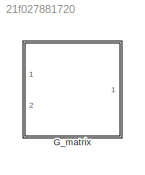
MODEL slx_21f027881720
KIND model
CONFIG AbsTol = auto
CONFIG EnableMultiTasking = off
CONFIG FixedStep = auto
CONFIG MaxStep = auto
CONFIG MinStep = auto
CONFIG RelTol = 1e-3
CONFIG SampleTimeConstraint = Unconstrained
CONFIG Solver = VariableStepAuto
CONFIG SolverName = VariableStepAuto
CONFIG StartTime = 0.0
CONFIG StopTime = 10.0
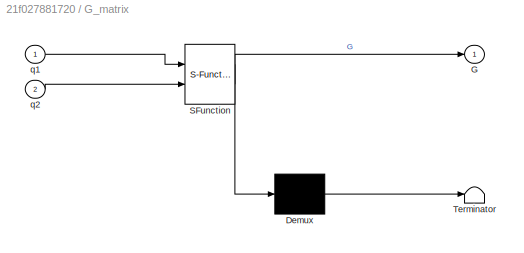
BLOCK [SubSystem] G_matrix
  ErrorFcn = Stateflow.Translate.translate
  PermitHierarchicalResolution = ExplicitOnly
  Ports = [2, 1]
  RequestExecContextInheritance = off
  SFBlockType = MATLAB Function
  TreatAsAtomicUnit = on
BLOCK [Demux] G_matrix/ Demux 
  Outputs = 1
  Ports = [1, 1]
BLOCK [S-Function] G_matrix/ SFunction 
  EnableBusSupport = on
  FunctionName = sf_sfun
  Parameters = g,l1,lc1,lc2,m1,m2
  PortCounts = [2 2]
  Ports = [2, 2]
  SFcnIsStateOwnerBlock = off
  SFunctionDeploymentMode = off
  Tag = Stateflow S-Function 8
BLOCK [Terminator] G_matrix/ Terminator 
BLOCK [Outport] G_matrix/G
  VectorParamsAs1DForOutWhenUnconnected = off
BLOCK [Inport] G_matrix/q1
BLOCK [Inport] G_matrix/q2
  Port = 2
CHART G_matrix states=1 transitions=1
  STATE_LABEL 'eML_blk_kernel()'
  STATE_LABEL 'SCRIPT:\nfunction G = G_matrix(q1,q2, g, l1, lc1, lc2, m1, m2)\n%#codegen\n\n%    This function was generated by the Symbolic Math Toolbox version 8.3.\n%    05-Nov-2019 15:18:30\n\nt2 = cos(q1);\nt3 = q1+q2;\nt4 = cos(t3);\nG = [g.*m2.*(l1.*t2+lc2.*t4)+g.*lc1.*m1.*t2;g.*lc2.*m2.*t4];\n'
CHART  states=0 transitions=0
